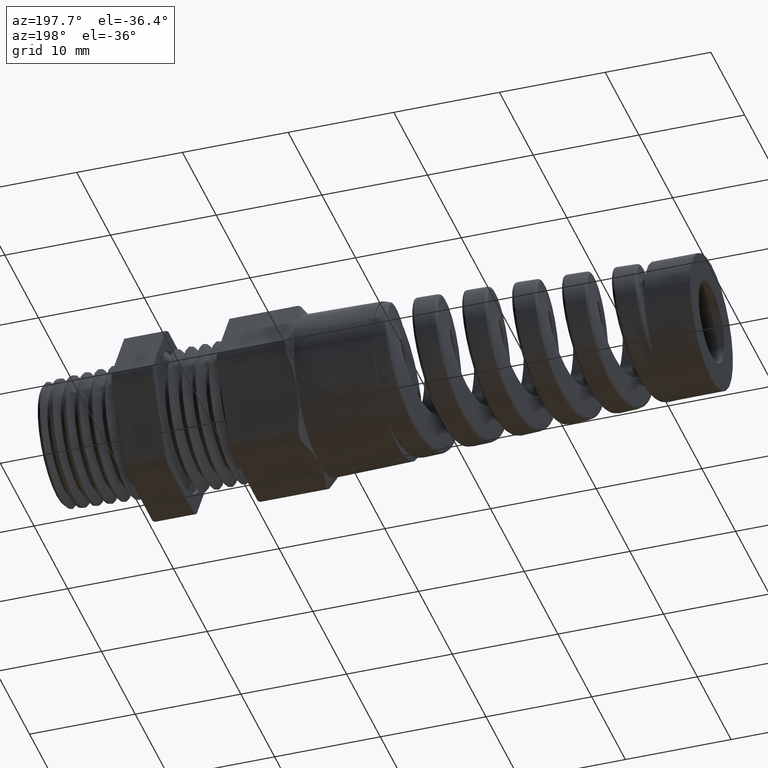
[diagram: clean part render]
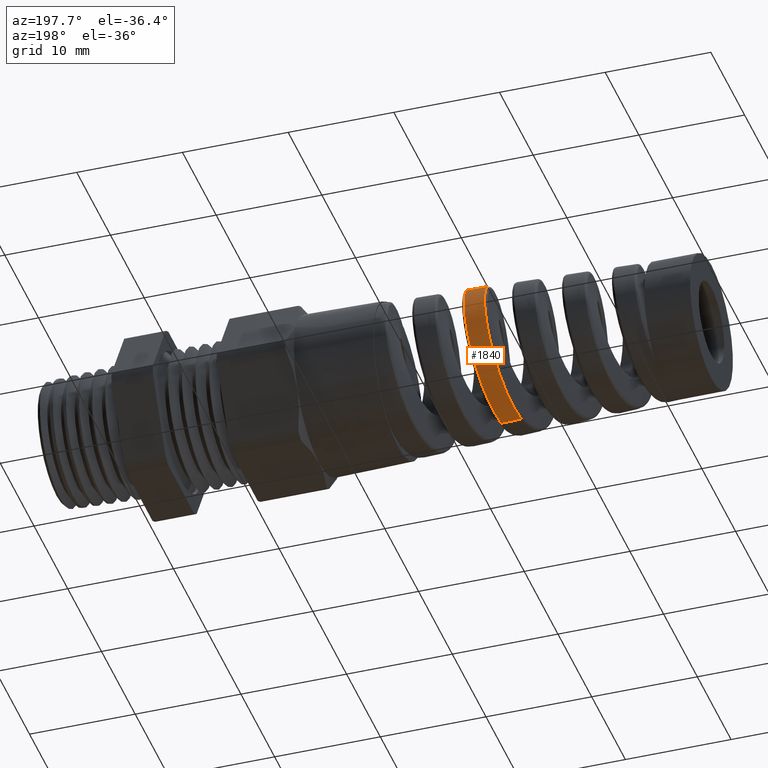
[diagram: same view with one face highlighted and labeled with its STEP entity id]
A machine part, auxiliary view. The second image highlights one B-rep face of the part: STEP entity #1840.
In plain terms, the highlighted conical surface has half-angle 2.001 deg.
Its self-contained STEP definition (entity closure, byte-faithful):
#1727 = ORIENTED_EDGE ( 'NONE', *, *, #1728, .T. ) ;
#1728 = EDGE_CURVE ( 'NONE', #1844, #1729, #7435, .T. ) ;
#1729 = VERTEX_POINT ( 'NONE', #7431 ) ;
#1730 = ORIENTED_EDGE ( 'NONE', *, *, #1731, .T. ) ;
#1731 = EDGE_CURVE ( 'NONE', #1729, #1732, #7429, .T. ) ;
#1732 = VERTEX_POINT ( 'NONE', #7430 ) ;
#1733 = ORIENTED_EDGE ( 'NONE', *, *, #1734, .F. ) ;
#1734 = EDGE_CURVE ( 'NONE', #1843, #1732, #7456, .T. ) ;
#1840 = ADVANCED_FACE ( 'NONE', ( #7860 ), #7859, .T. ) ;
#1841 = ORIENTED_EDGE ( 'NONE', *, *, #1842, .T. ) ;
#1842 = EDGE_CURVE ( 'NONE', #1843, #1844, #7853, .T. ) ;
#1843 = VERTEX_POINT ( 'NONE', #7854 ) ;
#1844 = VERTEX_POINT ( 'NONE', #7852 ) ;
#1904 = EDGE_LOOP ( 'NONE', ( #1841, #1727, #1730, #1733 ) ) ;
#7408 = CARTESIAN_POINT ( 'NONE',  ( -1.294154662527705600, 0.2658772442180417600, 0.06326495392545754300 ) ) ;
#7409 = CARTESIAN_POINT ( 'NONE',  ( -1.293185581389946700, 0.2636684908944247900, 0.07204496906627144700 ) ) ;
#7410 = CARTESIAN_POINT ( 'NONE',  ( -1.291266384852384000, 0.2584517062234607500, 0.08916781843209192800 ) ) ;
#7411 = CARTESIAN_POINT ( 'NONE',  ( -1.290311798472690800, 0.2554386031263016200, 0.09755239702254320200 ) ) ;
#7413 = CARTESIAN_POINT ( 'NONE',  ( -1.287450075675435000, 0.2452100275904513800, 0.1221849671754651900 ) ) ;
#7414 = CARTESIAN_POINT ( 'NONE',  ( -1.285541424456816400, 0.2367945860178961000, 0.1379500242744777200 ) ) ;
#7415 = CARTESIAN_POINT ( 'NONE',  ( -1.281685898263212400, 0.2167645383959561600, 0.1678948939085257700 ) ) ;
#7416 = CARTESIAN_POINT ( 'NONE',  ( -1.279791704125025500, 0.2054433294328881800, 0.1816500622917123800 ) ) ;
#7417 = CARTESIAN_POINT ( 'NONE',  ( -1.276939719327417500, 0.1865803893756419200, 0.2005210591814649300 ) ) ;
#7418 = CARTESIAN_POINT ( 'NONE',  ( -1.275987365915131700, 0.1799769485018189500, 0.2065156518986625300 ) ) ;
#7419 = CARTESIAN_POINT ( 'NONE',  ( -1.274069585441716600, 0.1661242892636372000, 0.2178986555274475800 ) ) ;
#7421 = CARTESIAN_POINT ( 'NONE',  ( -1.273102359181393900, 0.1588580536086949500, 0.2232920175256548900 ) ) ;
#7422 = CARTESIAN_POINT ( 'NONE',  ( -1.270230677562181000, 0.1365586336126587700, 0.2382053565347730700 ) ) ;
#7423 = CARTESIAN_POINT ( 'NONE',  ( -1.268335253244068200, 0.1208851836460347900, 0.2466000795246489600 ) ) ;
#7424 = CARTESIAN_POINT ( 'NONE',  ( -1.264523861363295000, 0.08794184459499235200, 0.2603152908102501800 ) ) ;
#7425 = CARTESIAN_POINT ( 'NONE',  ( -1.262595429403698500, 0.07056067848380018200, 0.2656214142832484200 ) ) ;
#7426 = CARTESIAN_POINT ( 'NONE',  ( -1.258797257370971100, 0.03564431311140964900, 0.2726459605410658800 ) ) ;
#7427 = CARTESIAN_POINT ( 'NONE',  ( -1.256907958573799400, 0.01794396701774781200, 0.2744548022594388000 ) ) ;
#7428 = CARTESIAN_POINT ( 'NONE',  ( -1.254991621382168100, -6.961226188765804100E-013, 0.2745217426551928000 ) ) ;
#7429 = B_SPLINE_CURVE_WITH_KNOTS ( 'NONE', 3,
 ( #7428, #7427, #7426, #7425, #7424, #7423, #7422, #7421, #7419, #7418, #7417, #7416, #7415, #7414, #7413, #7411, #7410, #7409, #7408, #7481, #7480, #7479, #7478, #7477, #7476, #7475, #7474, #7473, #7472, #7471, #7470, #7469, #7468, #7467, #7466, #7465, #7464, #7463, #7462, #7461, #7460, #7459, #7458, #7457 ),
 .UNSPECIFIED., .F., .F.,
 ( 4, 2, 2, 2, 2, 2, 2, 2, 2, 2, 2, 2, 2, 2, 2, 2, 2, 2, 2, 2, 2, 4 ),
 ( 0.07181033973332261200, 0.07318941347721887000, 0.07456848722111514300, 0.07594756096501140100, 0.07663709783695954500, 0.07732663470890767400, 0.07870570845280393200, 0.08008478219670020500, 0.08077431906864833400, 0.08146385594059647700, 0.08284292968449275000, 0.08422200342838900800, 0.08560107717228528100, 0.08629061404423342400, 0.08698015091618155300, 0.08835922466007782600, 0.08973829840397409800, 0.09042783527592224100, 0.09111737214787038500, 0.09249644589176665700, 0.09318598276371478600, 0.09387551963566293000 ),
 .UNSPECIFIED. ) ;
#7430 = CARTESIAN_POINT ( 'NONE',  ( -1.347000542083938400, 7.918581190651071900E-013, -0.2713077396103279500 ) ) ;
#7431 = CARTESIAN_POINT ( 'NONE',  ( -1.254991621382168100, -6.961226188765804100E-013, 0.2745217426551928000 ) ) ;
#7432 = DIRECTION ( 'NONE',  ( 0.9993904554178625300, 4.275258673359068100E-018, 0.03491013634572572000 ) ) ;
#7433 = VECTOR ( 'NONE', #7432, 39.37007874015748900 ) ;
#7434 = CARTESIAN_POINT ( 'NONE',  ( -0.6687500000000000700, 3.612708057484688900E-017, 0.2949999999999997100 ) ) ;
#7435 = LINE ( 'NONE', #7434, #7433 ) ;
#7453 = DIRECTION ( 'NONE',  ( 0.9993904554178625300, 0.0000000000000000000, -0.03491013634572572000 ) ) ;
#7454 = VECTOR ( 'NONE', #7453, 39.37007874015748900 ) ;
#7455 = CARTESIAN_POINT ( 'NONE',  ( -0.6687500000000000700, 0.0000000000000000000, -0.2949999999999997100 ) ) ;
#7456 = LINE ( 'NONE', #7455, #7454 ) ;
#7457 = CARTESIAN_POINT ( 'NONE',  ( -1.347000542083938400, 7.918581190651071900E-013, -0.2713077396103279500 ) ) ;
#7458 = CARTESIAN_POINT ( 'NONE',  ( -1.346040468706859900, 0.008898389185828812000, -0.2713412763449325500 ) ) ;
#7459 = CARTESIAN_POINT ( 'NONE',  ( -1.345077883622408900, 0.01781842057633372200, -0.2709382225262457800 ) ) ;
#7460 = CARTESIAN_POINT ( 'NONE',  ( -1.343138025957185000, 0.03570194944160110000, -0.2692344141210134000 ) ) ;
#7461 = CARTESIAN_POINT ( 'NONE',  ( -1.342163974824830900, 0.04463467159996732700, -0.2679310570916499400 ) ) ;
#7462 = CARTESIAN_POINT ( 'NONE',  ( -1.339270461390047200, 0.07091617286946023900, -0.2627626883456119500 ) ) ;
#7463 = CARTESIAN_POINT ( 'NONE',  ( -1.337361034764156200, 0.08793994436300663100, -0.2576365825749474300 ) ) ;
#7464 = CARTESIAN_POINT ( 'NONE',  ( -1.334474491322080300, 0.1127232254548579800, -0.2474243534731669100 ) ) ;
#7465 = CARTESIAN_POINT ( 'NONE',  ( -1.333502720425781700, 0.1209019625717800400, -0.2435717315677405300 ) ) ;
#7466 = CARTESIAN_POINT ( 'NONE',  ( -1.331571503620710800, 0.1367369460288931600, -0.2351258251595870800 ) ) ;
#7467 = CARTESIAN_POINT ( 'NONE',  ( -1.330612487725887400, 0.1443921888524726800, -0.2305403932978794300 ) ) ;
#7468 = CARTESIAN_POINT ( 'NONE',  ( -1.327739848047077000, 0.1665902877492873000, -0.2157258276741788900 ) ) ;
#7469 = CARTESIAN_POINT ( 'NONE',  ( -1.325830441763326900, 0.1803728755930779100, -0.2044485996784470800 ) ) ;
#7470 = CARTESIAN_POINT ( 'NONE',  ( -1.321950753266941400, 0.2058298629278562900, -0.1790011938619194000 ) ) ;
#7471 = CARTESIAN_POINT ( 'NONE',  ( -1.320031444795424700, 0.2171702122761113000, -0.1651459544818088000 ) ) ;
#7472 = CARTESIAN_POINT ( 'NONE',  ( -1.317165471124213600, 0.2319794568862189600, -0.1429651826640853100 ) ) ;
#7473 = CARTESIAN_POINT ( 'NONE',  ( -1.316210117289402100, 0.2365583267150403200, -0.1353249563159468500 ) ) ;
#7474 = CARTESIAN_POINT ( 'NONE',  ( -1.314289108645867900, 0.2449871564060128700, -0.1195430433998555500 ) ) ;
#7475 = CARTESIAN_POINT ( 'NONE',  ( -1.313318497176718900, 0.2488523086973481500, -0.1113575616991633700 ) ) ;
#7476 = CARTESIAN_POINT ( 'NONE',  ( -1.310431862216688400, 0.2591127294210915900, -0.08651233275393167800 ) ) ;
#7477 = CARTESIAN_POINT ( 'NONE',  ( -1.308529402721704300, 0.2642504915789081200, -0.06948464804092109600 ) ) ;
#7478 = CARTESIAN_POINT ( 'NONE',  ( -1.304696677444885600, 0.2711780413055092700, -0.03452438330427038500 ) ) ;
#7479 = CARTESIAN_POINT ( 'NONE',  ( -1.302751269825824300, 0.2729409416001993300, -0.01643033989605434100 ) ) ;
#7480 = CARTESIAN_POINT ( 'NONE',  ( -1.298928325304733700, 0.2728923342626078900, 0.01921925069320865000 ) ) ;
#7481 = CARTESIAN_POINT ( 'NONE',  ( -1.297033194400995600, 0.2711383051069365400, 0.03691726262135360000 ) ) ;
#7845 = CARTESIAN_POINT ( 'NONE',  ( -1.411242387054021200, 0.09535088316631175300, -0.2517573302537263200 ) ) ;
#7846 = CARTESIAN_POINT ( 'NONE',  ( -1.412214193916890400, 0.08691691667641932000, -0.2547576457484054800 ) ) ;
#7847 = CARTESIAN_POINT ( 'NONE',  ( -1.414147599282080400, 0.06989151857315376000, -0.2598746812433778700 ) ) ;
#7848 = CARTESIAN_POINT ( 'NONE',  ( -1.415108225518184600, 0.06131091470146176500, -0.2619946701009028800 ) ) ;
#7849 = CARTESIAN_POINT ( 'NONE',  ( -1.417986729886159700, 0.03537219558058332000, -0.2670727169728474600 ) ) ;
#7850 = CARTESIAN_POINT ( 'NONE',  ( -1.419901506423400000, 0.01781909636216126900, -0.2687612047789925100 ) ) ;
#7851 = CARTESIAN_POINT ( 'NONE',  ( -1.421845908686404400, 2.964226937911143900E-015, -0.2686932840301559100 ) ) ;
#7852 = CARTESIAN_POINT ( 'NONE',  ( -1.329849909904325900, 9.674502626743447000E-013, 0.2719068356939055600 ) ) ;
#7853 = B_SPLINE_CURVE_WITH_KNOTS ( 'NONE', 3,
 ( #7851, #7850, #7849, #7848, #7847, #7846, #7845, #7924, #7923, #7922, #7921, #7920, #7919, #7918, #7917, #7916, #7915, #7914, #7913, #7912, #7911, #7910, #7909, #7908, #7907, #7906, #7905, #7904, #7903, #7902, #7901, #7900, #7899, #7898, #7897, #7896, #7895, #7894, #7893, #7892, #7891, #7890, #7889, #7888, #7887, #7886 ),
 .UNSPECIFIED., .F., .F.,
 ( 4, 2, 2, 2, 2, 2, 2, 2, 2, 2, 2, 2, 2, 2, 2, 2, 2, 2, 2, 2, 2, 2, 4 ),
 ( 0.1229244255178802700, 0.1242942280926052100, 0.1249791293799676800, 0.1256640306673301500, 0.1270338332420550800, 0.1277187345294175700, 0.1284036358167800200, 0.1297734383915049600, 0.1304583396788674400, 0.1311432409662299000, 0.1318281422535923500, 0.1325130435409548300, 0.1338828461156797700, 0.1352526486904046800, 0.1366224512651296200, 0.1373073525524921000, 0.1379922538398545600, 0.1393620564145794900, 0.1407318589893044000, 0.1414167602766668900, 0.1421016615640293400, 0.1434714641387542800, 0.1448412667134791900 ),
 .UNSPECIFIED. ) ;
#7854 = CARTESIAN_POINT ( 'NONE',  ( -1.421845908686404400, 2.964226937911143900E-015, -0.2686932840301559100 ) ) ;
#7855 = DIRECTION ( 'NONE',  ( 0.0000000000000000000, 0.0000000000000000000, -1.000000000000000000 ) ) ;
#7856 = DIRECTION ( 'NONE',  ( 1.000000000000000000, 0.0000000000000000000, 0.0000000000000000000 ) ) ;
#7857 = CARTESIAN_POINT ( 'NONE',  ( -0.6687500000000000700, 0.0000000000000000000, 0.0000000000000000000 ) ) ;
#7858 = AXIS2_PLACEMENT_3D ( 'NONE', #7857, #7856, #7855 ) ;
#7859 = CONICAL_SURFACE ( 'NONE', #7858, 0.2949999999999997100, 0.03491723117042437600 ) ;
#7860 = FACE_OUTER_BOUND ( 'NONE', #1904, .T. ) ;
#7886 = CARTESIAN_POINT ( 'NONE',  ( -1.329849909904325900, 9.674502626743447000E-013, 0.2719068356939055600 ) ) ;
#7887 = CARTESIAN_POINT ( 'NONE',  ( -1.331752805787689700, 0.01765380561769168100, 0.2718403648221431300 ) ) ;
#7888 = CARTESIAN_POINT ( 'NONE',  ( -1.333687971960548800, 0.03556576037449939900, 0.2700129761936891900 ) ) ;
#7889 = CARTESIAN_POINT ( 'NONE',  ( -1.337492561277262300, 0.07016371208359158100, 0.2630147614352819100 ) ) ;
#7890 = CARTESIAN_POINT ( 'NONE',  ( -1.339379486793042900, 0.08700931927110976100, 0.2578693341911010900 ) ) ;
#7891 = CARTESIAN_POINT ( 'NONE',  ( -1.342246407342757800, 0.1115800404787309200, 0.2476421285787480100 ) ) ;
#7892 = CARTESIAN_POINT ( 'NONE',  ( -1.343211512806845100, 0.1196786584039105000, 0.2437935534346620800 ) ) ;
#7893 = CARTESIAN_POINT ( 'NONE',  ( -1.345123139455270500, 0.1352959628089283100, 0.2354082275413175200 ) ) ;
#7894 = CARTESIAN_POINT ( 'NONE',  ( -1.346074256320893400, 0.1428553625281694900, 0.2308577810759098200 ) ) ;
#7895 = CARTESIAN_POINT ( 'NONE',  ( -1.348927186520209700, 0.1647989497614408000, 0.2161545043406099000 ) ) ;
#7896 = CARTESIAN_POINT ( 'NONE',  ( -1.350832807145247100, 0.1784813877250520100, 0.2049341108748261600 ) ) ;
#7897 = CARTESIAN_POINT ( 'NONE',  ( -1.354688975034517900, 0.2036986103510619900, 0.1796870468904674100 ) ) ;
#7898 = CARTESIAN_POINT ( 'NONE',  ( -1.356583255929295400, 0.2148722009763508700, 0.1660319376424117000 ) ) ;
#7899 = CARTESIAN_POINT ( 'NONE',  ( -1.359435792200218700, 0.2295551139953898600, 0.1440638777305846600 ) ) ;
#7900 = CARTESIAN_POINT ( 'NONE',  ( -1.360388355422816200, 0.2341006890897476500, 0.1364918294485144800 ) ) ;
#7901 = CARTESIAN_POINT ( 'NONE',  ( -1.362306922224080200, 0.2424769382053713900, 0.1208378607709949500 ) ) ;
#7902 = CARTESIAN_POINT ( 'NONE',  ( -1.363275100982358700, 0.2463106287174617900, 0.1127353875135131600 ) ) ;
#7903 = CARTESIAN_POINT ( 'NONE',  ( -1.366150992725391000, 0.2564807476986658600, 0.08818614077669229000 ) ) ;
#7904 = CARTESIAN_POINT ( 'NONE',  ( -1.368051241038092500, 0.2615962084479575000, 0.07133716254576502600 ) ) ;
#7905 = CARTESIAN_POINT ( 'NONE',  ( -1.371879385274920900, 0.2685205354800385700, 0.03668710506897683600 ) ) ;
#7906 = CARTESIAN_POINT ( 'NONE',  ( -1.373816800169307400, 0.2702944288861200400, 0.01877398309080274800 ) ) ;
#7907 = CARTESIAN_POINT ( 'NONE',  ( -1.377633256580042400, 0.2703094927995711200, -0.01649993857841248000 ) ) ;
#7908 = CARTESIAN_POINT ( 'NONE',  ( -1.379531504546897700, 0.2686071469425711500, -0.03403744282728049500 ) ) ;
#7909 = CARTESIAN_POINT ( 'NONE',  ( -1.382422243073920800, 0.2634288861297157700, -0.06018463220814739700 ) ) ;
#7910 = CARTESIAN_POINT ( 'NONE',  ( -1.383393188233790000, 0.2612556600942631500, -0.06887321275568553100 ) ) ;
#7911 = CARTESIAN_POINT ( 'NONE',  ( -1.385315451948008900, 0.2561207913435892300, -0.08581328341566507600 ) ) ;
#7912 = CARTESIAN_POINT ( 'NONE',  ( -1.386272191875910400, 0.2531509332179408500, -0.09411430779506700700 ) ) ;
#7913 = CARTESIAN_POINT ( 'NONE',  ( -1.388184281428194600, 0.2464192755698467200, -0.1103828966754335400 ) ) ;
#7914 = CARTESIAN_POINT ( 'NONE',  ( -1.389139187500558500, 0.2426574614761913000, -0.1183505075297590800 ) ) ;
#7915 = CARTESIAN_POINT ( 'NONE',  ( -1.391056731543212100, 0.2343320878095748200, -0.1339470595936157500 ) ) ;
#7916 = CARTESIAN_POINT ( 'NONE',  ( -1.392024041836124700, 0.2297442830081170000, -0.1416113358041054000 ) ) ;
#7917 = CARTESIAN_POINT ( 'NONE',  ( -1.394919766985670300, 0.2149058411456010700, -0.1638133921535737100 ) ) ;
#7918 = CARTESIAN_POINT ( 'NONE',  ( -1.396822986069616400, 0.2037065091631928300, -0.1774284851993348800 ) ) ;
#7919 = CARTESIAN_POINT ( 'NONE',  ( -1.399696134592134800, 0.1850075586174138000, -0.1961181576812987300 ) ) ;
#7920 = CARTESIAN_POINT ( 'NONE',  ( -1.400656785209193100, 0.1784556437757788500, -0.2020571686125655100 ) ) ;
#7921 = CARTESIAN_POINT ( 'NONE',  ( -1.402593002095166700, 0.1646962245022891800, -0.2133359515539777200 ) ) ;
#7922 = CARTESIAN_POINT ( 'NONE',  ( -1.403565469646868900, 0.1575076633761547700, -0.2186530876903302900 ) ) ;
#7923 = CARTESIAN_POINT ( 'NONE',  ( -1.406453394386769400, 0.1354293251802681000, -0.2333602055173639200 ) ) ;
#7924 = CARTESIAN_POINT ( 'NONE',  ( -1.408357607885222700, 0.1198894423708052200, -0.2416384563814209800 ) ) ;